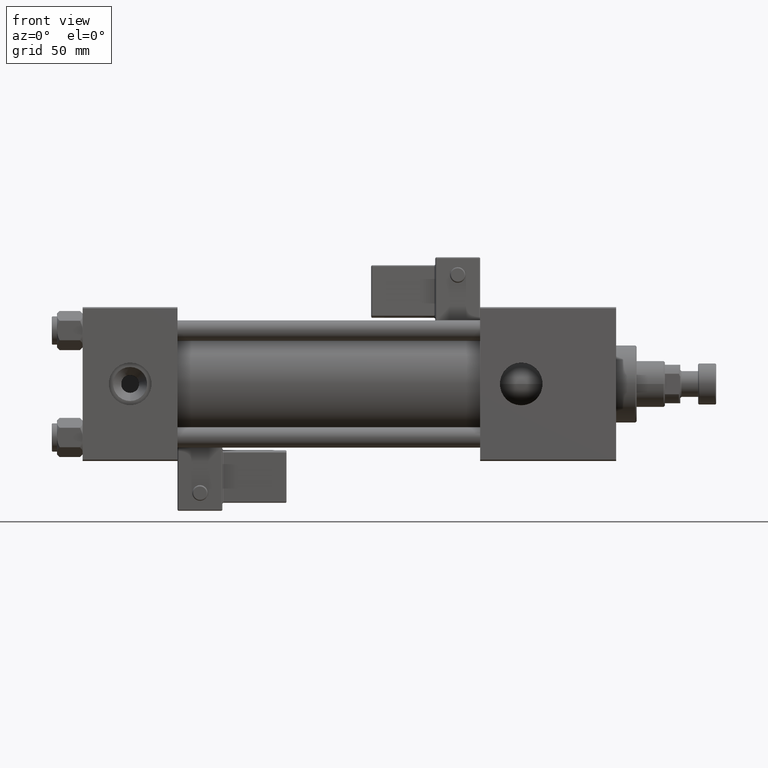
[diagram: clean part render]
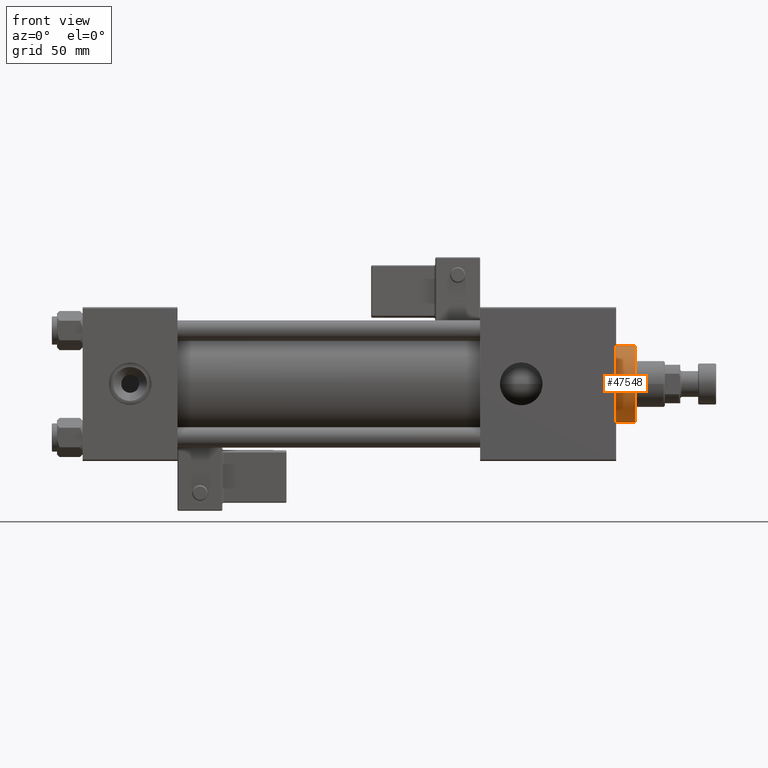
[diagram: same view with one face highlighted and labeled with its STEP entity id]
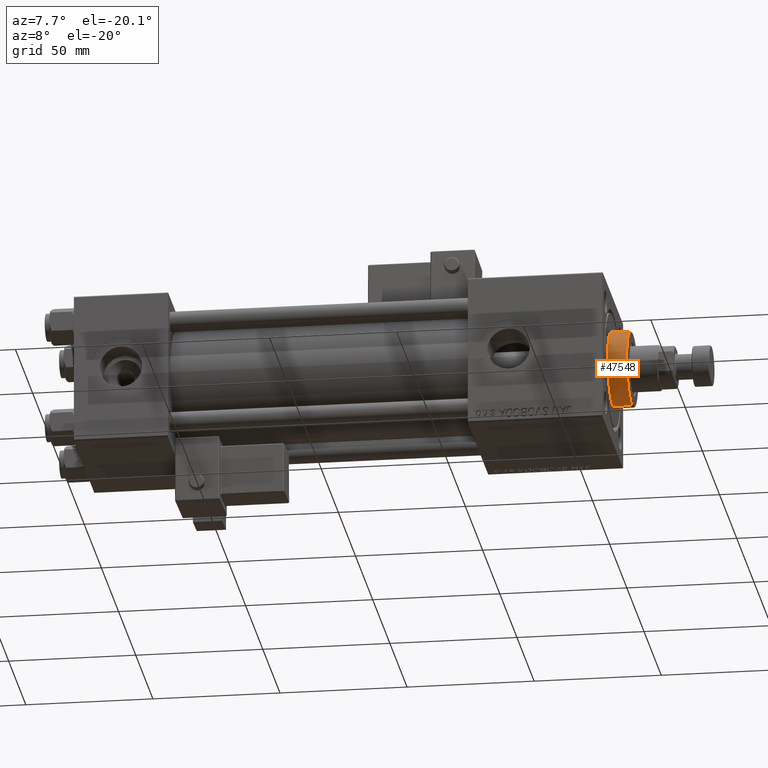
[diagram: same view with one face highlighted and labeled with its STEP entity id]
A machine part, front view. The second image highlights one B-rep face of the part: STEP entity #47548.
A second angle (auxiliary view) of the same face is appended — the face is thin or edge-on in the first view.
In plain terms, the highlighted cylindrical surface (partial cylindrical patch) has radius 15 mm, axis along (-1, -0, -0).
Its self-contained STEP definition (entity closure, byte-faithful):
#2263 = AXIS2_PLACEMENT_3D ( 'NONE', #48297, #43313, #26934 ) ;
#3070 = CARTESIAN_POINT ( 'NONE',  ( -15.00000000000000000, 0.000000000000000000, 28.69999999999999929 ) ) ;
#4073 = CYLINDRICAL_SURFACE ( 'NONE', #37272, 15.00000000000000000 ) ;
#4687 = CARTESIAN_POINT ( 'NONE',  ( 15.00000000000000000, 1.836970198721029589E-15, 36.69999999999999574 ) ) ;
#9959 = CARTESIAN_POINT ( 'NONE',  ( -15.00000000000000000, 0.000000000000000000, 36.69999999999999574 ) ) ;
#9994 = CARTESIAN_POINT ( 'NONE',  ( -15.00000000000000000, 0.000000000000000000, 36.20000000000000284 ) ) ;
#11107 = CARTESIAN_POINT ( 'NONE',  ( 0.000000000000000000, 0.000000000000000000, 36.69999999999999574 ) ) ;
#11171 = DIRECTION ( 'NONE',  ( 0.000000000000000000, 0.000000000000000000, -1.000000000000000000 ) ) ;
#13569 = LINE ( 'NONE', #4687, #43128 ) ;
#13653 = EDGE_LOOP ( 'NONE', ( #54560, #20402, #23175, #46826 ) ) ;
#13814 = CIRCLE ( 'NONE', #2263, 15.00000000000000000 ) ;
#15038 = EDGE_CURVE ( 'NONE', #22393, #27053, #49156, .T. ) ;
#15342 = CARTESIAN_POINT ( 'NONE',  ( 0.000000000000000000, 0.000000000000000000, 36.20000000000000284 ) ) ;
#16852 = DIRECTION ( 'NONE',  ( -1.000000000000000000, 0.000000000000000000, 0.000000000000000000 ) ) ;
#17662 = EDGE_CURVE ( 'NONE', #35355, #41261, #13814, .T. ) ;
#18980 = EDGE_CURVE ( 'NONE', #22393, #41261, #13569, .T. ) ;
#20402 = ORIENTED_EDGE ( 'NONE', *, *, #15038, .T. ) ;
#21073 = DIRECTION ( 'NONE',  ( -0.000000000000000000, -0.000000000000000000, -1.000000000000000000 ) ) ;
#22172 = LINE ( 'NONE', #9959, #48689 ) ;
#22393 = VERTEX_POINT ( 'NONE', #43365 ) ;
#22980 = DIRECTION ( 'NONE',  ( -0.000000000000000000, -0.000000000000000000, -1.000000000000000000 ) ) ;
#23175 = ORIENTED_EDGE ( 'NONE', *, *, #45474, .T. ) ;
#26934 = DIRECTION ( 'NONE',  ( 1.000000000000000000, 0.000000000000000000, 0.000000000000000000 ) ) ;
#27053 = VERTEX_POINT ( 'NONE', #9994 ) ;
#28105 = DIRECTION ( 'NONE',  ( 1.000000000000000000, 0.000000000000000000, 0.000000000000000000 ) ) ;
#32215 = DIRECTION ( 'NONE',  ( -0.000000000000000000, -0.000000000000000000, -1.000000000000000000 ) ) ;
#35355 = VERTEX_POINT ( 'NONE', #3070 ) ;
#37272 = AXIS2_PLACEMENT_3D ( 'NONE', #11107, #32215, #16852 ) ;
#39472 = AXIS2_PLACEMENT_3D ( 'NONE', #15342, #11171, #28105 ) ;
#41261 = VERTEX_POINT ( 'NONE', #54771 ) ;
#43128 = VECTOR ( 'NONE', #21073, 1000.000000000000000 ) ;
#43313 = DIRECTION ( 'NONE',  ( 0.000000000000000000, 0.000000000000000000, 1.000000000000000000 ) ) ;
#43365 = CARTESIAN_POINT ( 'NONE',  ( 15.00000000000000000, 1.836970198721029589E-15, 36.20000000000000284 ) ) ;
#44956 = FACE_OUTER_BOUND ( 'NONE', #13653, .T. ) ;
#45474 = EDGE_CURVE ( 'NONE', #27053, #35355, #22172, .T. ) ;
#46826 = ORIENTED_EDGE ( 'NONE', *, *, #17662, .T. ) ;
#47548 = ADVANCED_FACE ( 'NONE', ( #44956 ), #4073, .T. ) ;
#48297 = CARTESIAN_POINT ( 'NONE',  ( 0.000000000000000000, 0.000000000000000000, 28.69999999999999929 ) ) ;
#48689 = VECTOR ( 'NONE', #22980, 1000.000000000000000 ) ;
#49156 = CIRCLE ( 'NONE', #39472, 15.00000000000000000 ) ;
#54560 = ORIENTED_EDGE ( 'NONE', *, *, #18980, .F. ) ;
#54771 = CARTESIAN_POINT ( 'NONE',  ( 15.00000000000000000, 1.836970198721029589E-15, 28.69999999999999929 ) ) ;